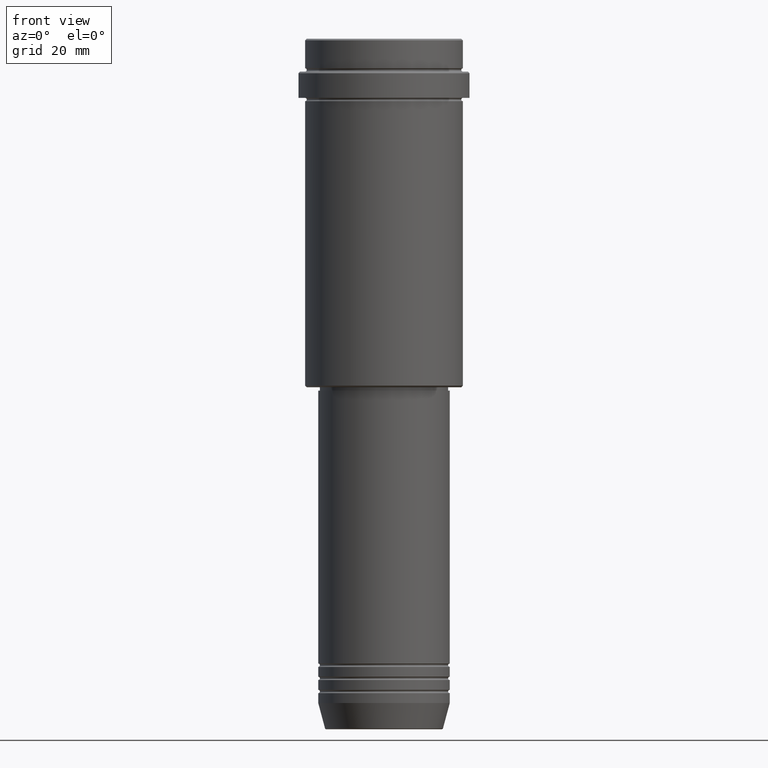
[diagram: clean part render]
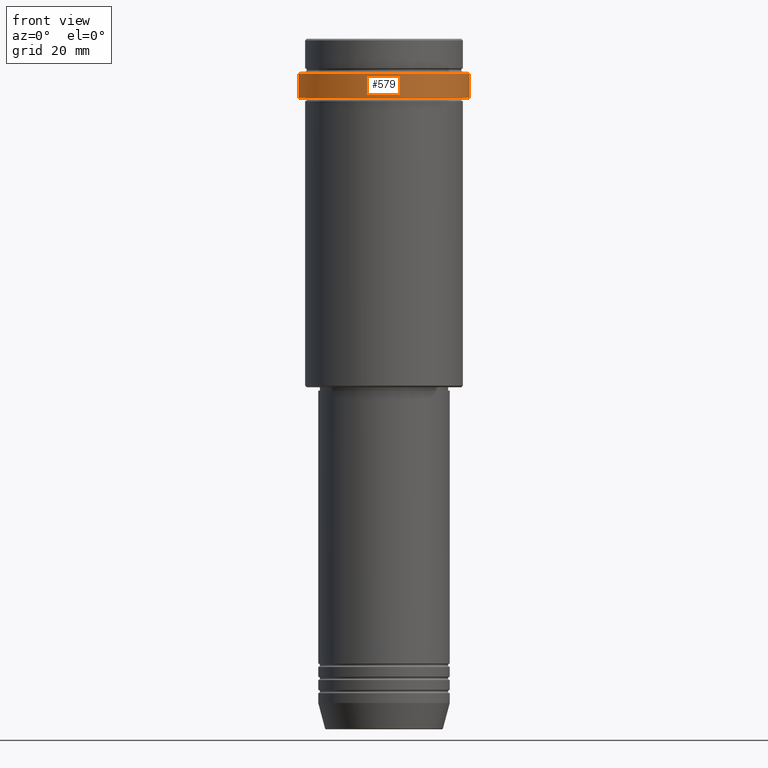
[diagram: same view with one face highlighted and labeled with its STEP entity id]
A machine part, front view. The second image highlights one B-rep face of the part: STEP entity #579.
In plain terms, the highlighted cylindrical surface (partial cylindrical patch) has radius 26 mm, axis along (-0, -0, 1).
Its self-contained STEP definition (entity closure, byte-faithful):
#83 = EDGE_CURVE ( 'NONE', #109, #1365, #455, .T. ) ;
#109 = VERTEX_POINT ( 'NONE', #873 ) ;
#122 = CIRCLE ( 'NONE', #1012, 25.99999999999997158 ) ;
#313 = ORIENTED_EDGE ( 'NONE', *, *, #1196, .T. ) ;
#330 = CARTESIAN_POINT ( 'NONE',  ( 0.000000000000000000, 0.000000000000000000, -18.00000000000000355 ) ) ;
#336 = ORIENTED_EDGE ( 'NONE', *, *, #769, .F. ) ;
#350 = CARTESIAN_POINT ( 'NONE',  ( -25.99999999999997158, 3.184081677783114641E-15, -18.00000000000000355 ) ) ;
#357 = AXIS2_PLACEMENT_3D ( 'NONE', #1367, #486, #382 ) ;
#360 = CIRCLE ( 'NONE', #497, 25.99999999999997158 ) ;
#382 = DIRECTION ( 'NONE',  ( 1.000000000000000000, 0.000000000000000000, 0.000000000000000000 ) ) ;
#455 = LINE ( 'NONE', #1304, #518 ) ;
#486 = DIRECTION ( 'NONE',  ( -0.000000000000000000, -0.000000000000000000, 1.000000000000000000 ) ) ;
#497 = AXIS2_PLACEMENT_3D ( 'NONE', #833, #1371, #976 ) ;
#518 = VECTOR ( 'NONE', #1322, 1000.000000000000000 ) ;
#524 = EDGE_CURVE ( 'NONE', #1343, #109, #122, .T. ) ;
#579 = ADVANCED_FACE ( 'NONE', ( #700 ), #1135, .T. ) ;
#700 = FACE_OUTER_BOUND ( 'NONE', #1401, .T. ) ;
#759 = DIRECTION ( 'NONE',  ( -0.000000000000000000, -0.000000000000000000, 1.000000000000000000 ) ) ;
#769 = EDGE_CURVE ( 'NONE', #1343, #842, #1291, .T. ) ;
#775 = DIRECTION ( 'NONE',  ( 1.000000000000000000, 0.000000000000000000, 0.000000000000000000 ) ) ;
#833 = CARTESIAN_POINT ( 'NONE',  ( 0.000000000000000000, 0.000000000000000000, -10.49999999999999467 ) ) ;
#836 = CARTESIAN_POINT ( 'NONE',  ( -25.99999999999997158, 3.184081677783114641E-15, 0.000000000000000000 ) ) ;
#842 = VERTEX_POINT ( 'NONE', #951 ) ;
#873 = CARTESIAN_POINT ( 'NONE',  ( 25.99999999999997158, 0.000000000000000000, -18.00000000000000355 ) ) ;
#903 = VECTOR ( 'NONE', #935, 1000.000000000000000 ) ;
#935 = DIRECTION ( 'NONE',  ( -0.000000000000000000, -0.000000000000000000, 1.000000000000000000 ) ) ;
#951 = CARTESIAN_POINT ( 'NONE',  ( -25.99999999999997158, 3.184081677783114641E-15, -10.49999999999999467 ) ) ;
#976 = DIRECTION ( 'NONE',  ( 1.000000000000000000, 0.000000000000000000, 0.000000000000000000 ) ) ;
#1012 = AXIS2_PLACEMENT_3D ( 'NONE', #330, #759, #775 ) ;
#1014 = CARTESIAN_POINT ( 'NONE',  ( 25.99999999999997158, 0.000000000000000000, -10.49999999999999467 ) ) ;
#1079 = ORIENTED_EDGE ( 'NONE', *, *, #83, .T. ) ;
#1135 = CYLINDRICAL_SURFACE ( 'NONE', #357, 25.99999999999997158 ) ;
#1196 = EDGE_CURVE ( 'NONE', #1365, #842, #360, .T. ) ;
#1291 = LINE ( 'NONE', #836, #903 ) ;
#1304 = CARTESIAN_POINT ( 'NONE',  ( 25.99999999999997158, 0.000000000000000000, 0.000000000000000000 ) ) ;
#1318 = ORIENTED_EDGE ( 'NONE', *, *, #524, .T. ) ;
#1322 = DIRECTION ( 'NONE',  ( -0.000000000000000000, -0.000000000000000000, 1.000000000000000000 ) ) ;
#1343 = VERTEX_POINT ( 'NONE', #350 ) ;
#1365 = VERTEX_POINT ( 'NONE', #1014 ) ;
#1367 = CARTESIAN_POINT ( 'NONE',  ( 0.000000000000000000, 0.000000000000000000, 0.000000000000000000 ) ) ;
#1371 = DIRECTION ( 'NONE',  ( 0.000000000000000000, 0.000000000000000000, -1.000000000000000000 ) ) ;
#1401 = EDGE_LOOP ( 'NONE', ( #336, #1318, #1079, #313 ) ) ;